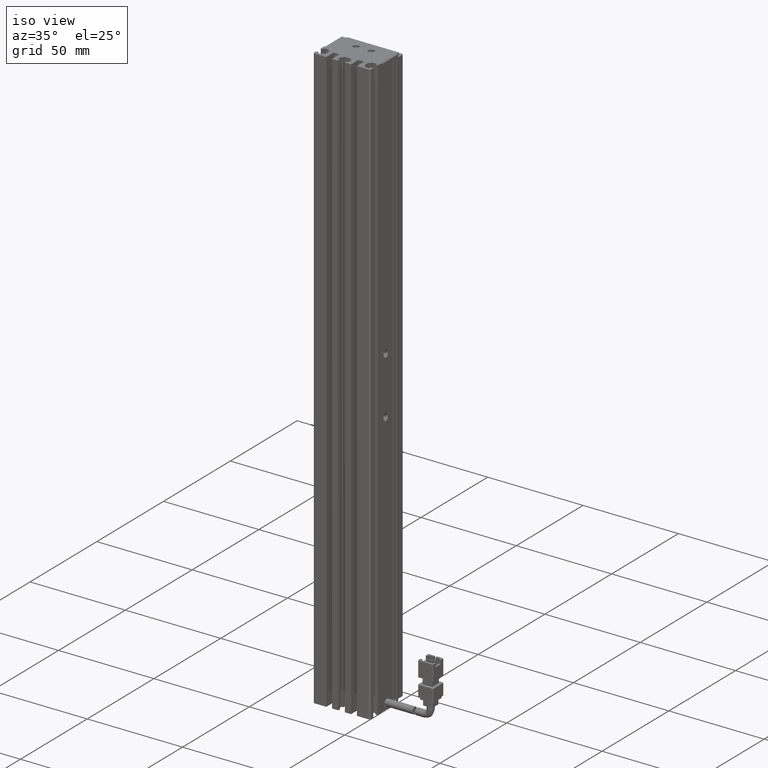
[diagram: clean part render]
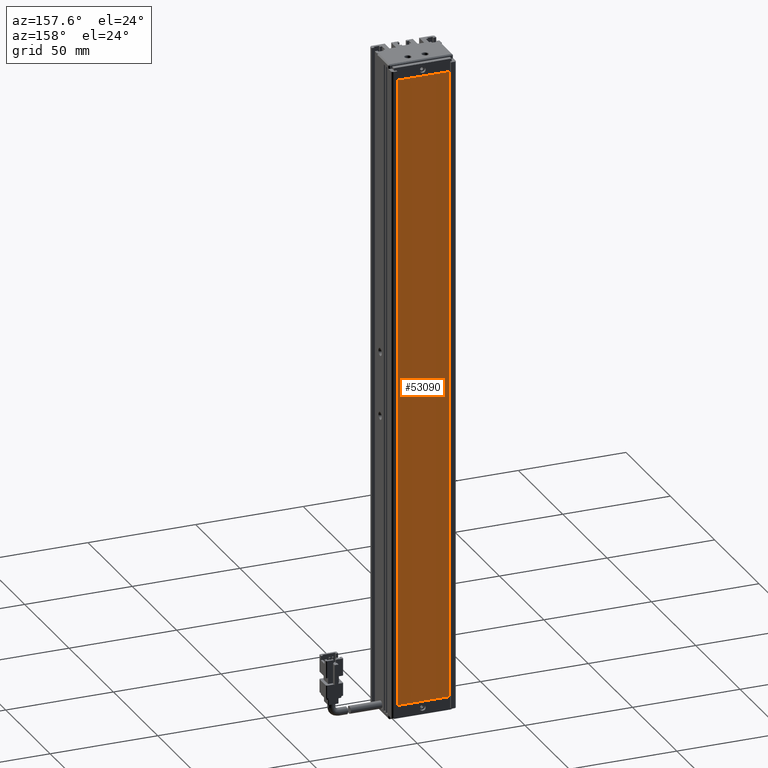
[diagram: tour spotlight — one face highlighted and labeled with its STEP entity id]
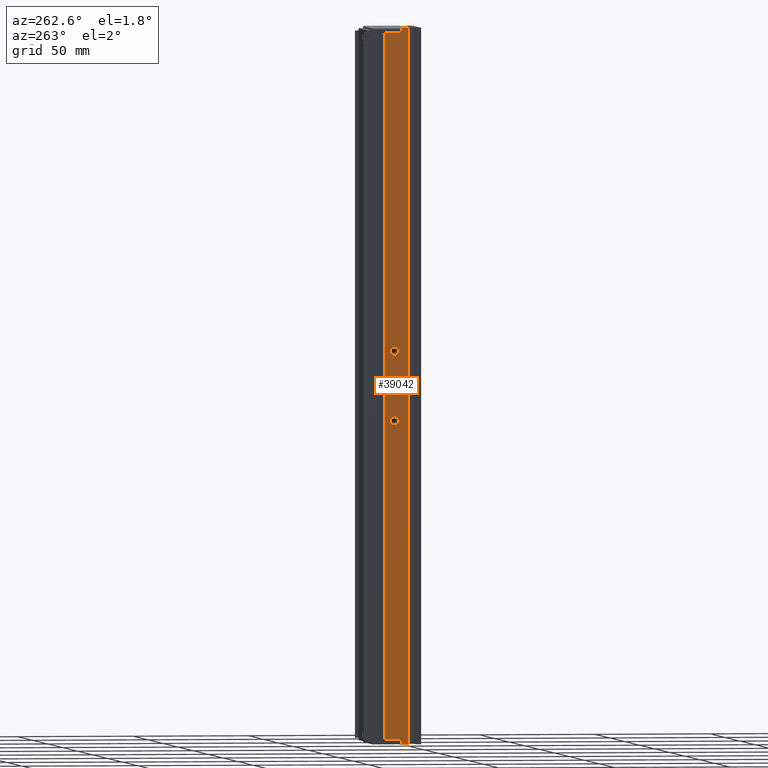
[diagram: tour spotlight — one face highlighted and labeled with its STEP entity id]
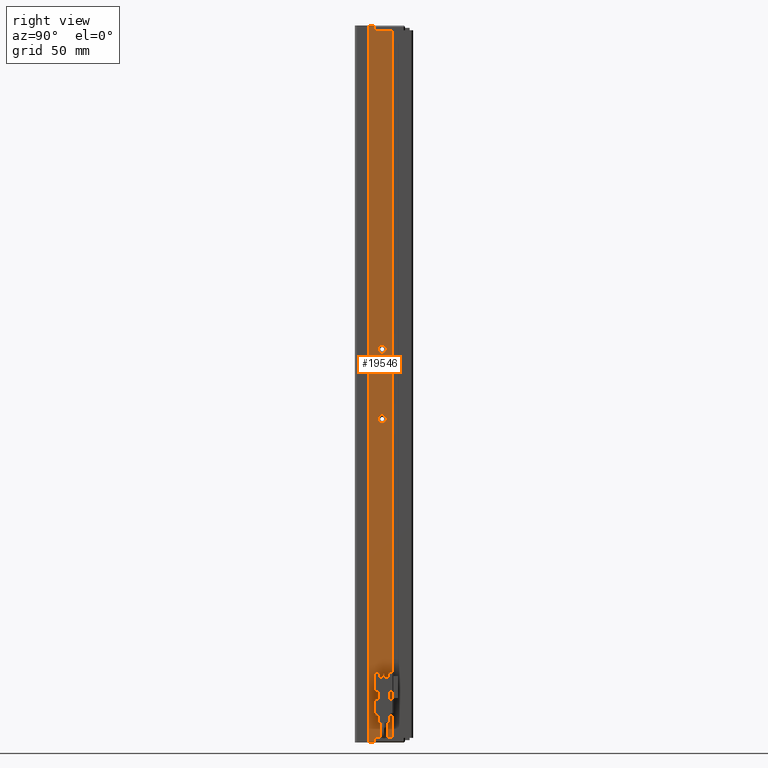
[diagram: tour spotlight — one face highlighted and labeled with its STEP entity id]
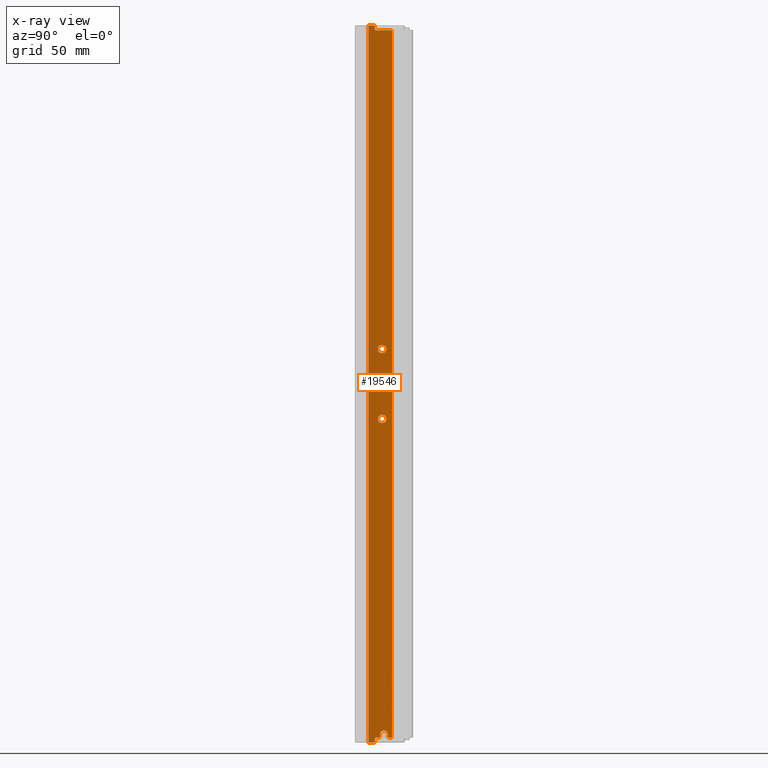
[diagram: x-ray of the same camera — body ghosted, this tour face saturated]
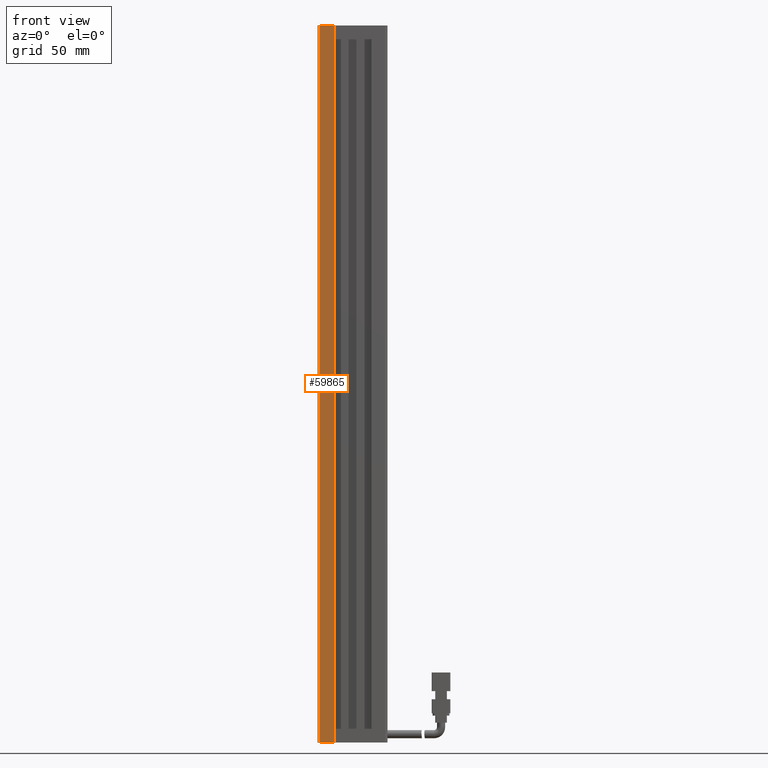
[diagram: tour spotlight — one face highlighted and labeled with its STEP entity id]
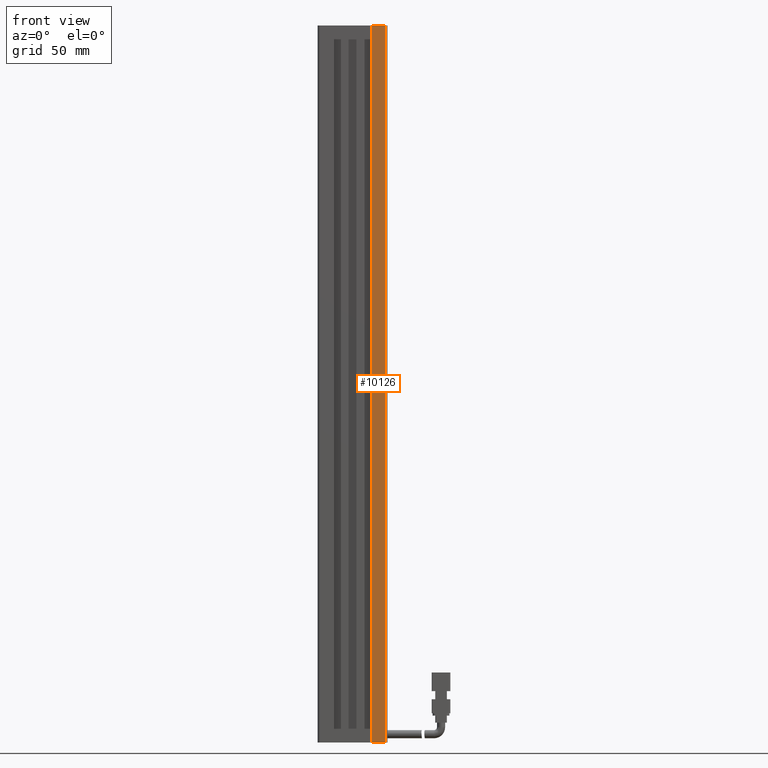
[diagram: tour spotlight — one face highlighted and labeled with its STEP entity id]
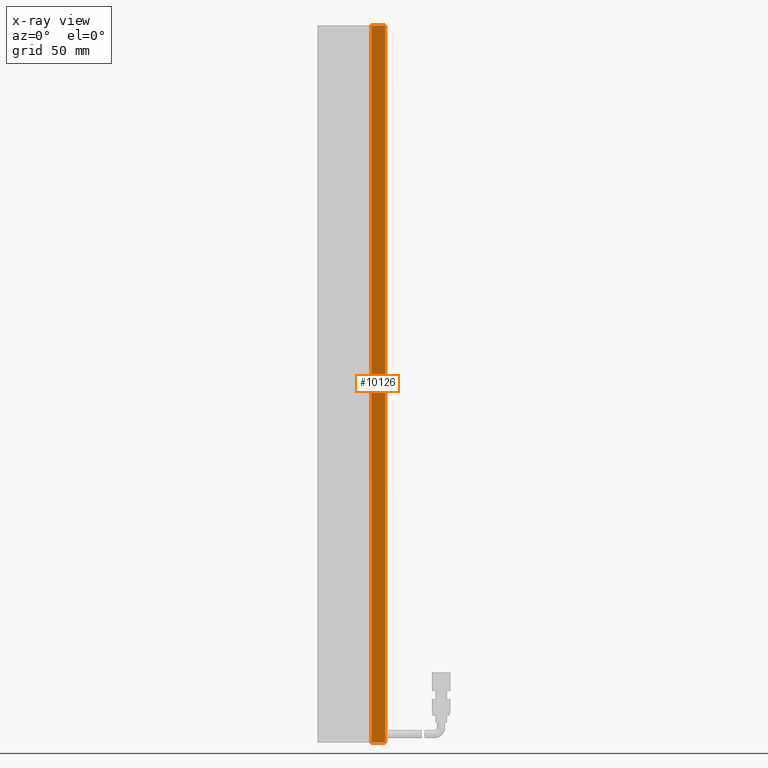
[diagram: x-ray of the same camera — body ghosted, this tour face saturated]
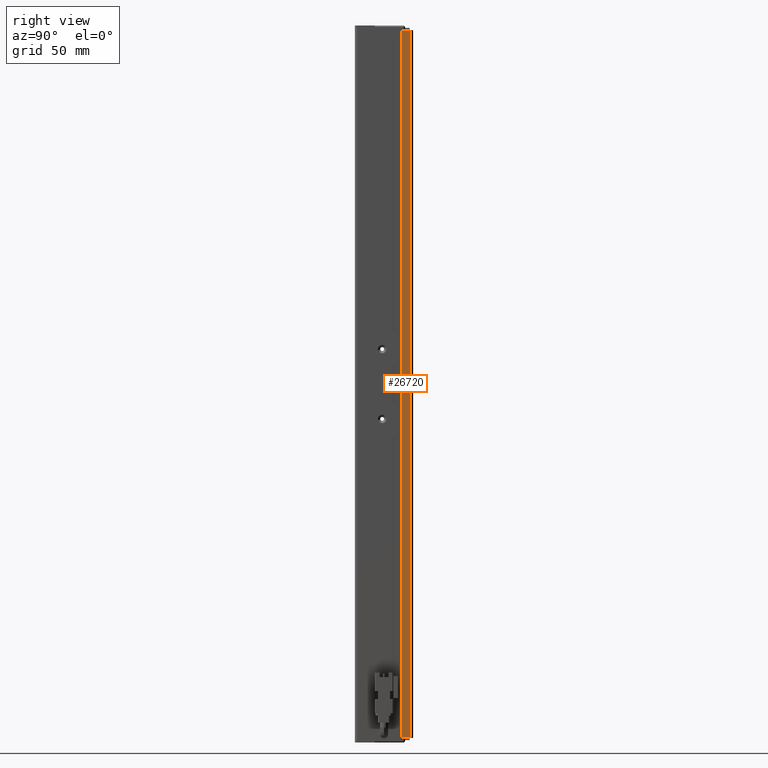
[diagram: tour spotlight — one face highlighted and labeled with its STEP entity id]
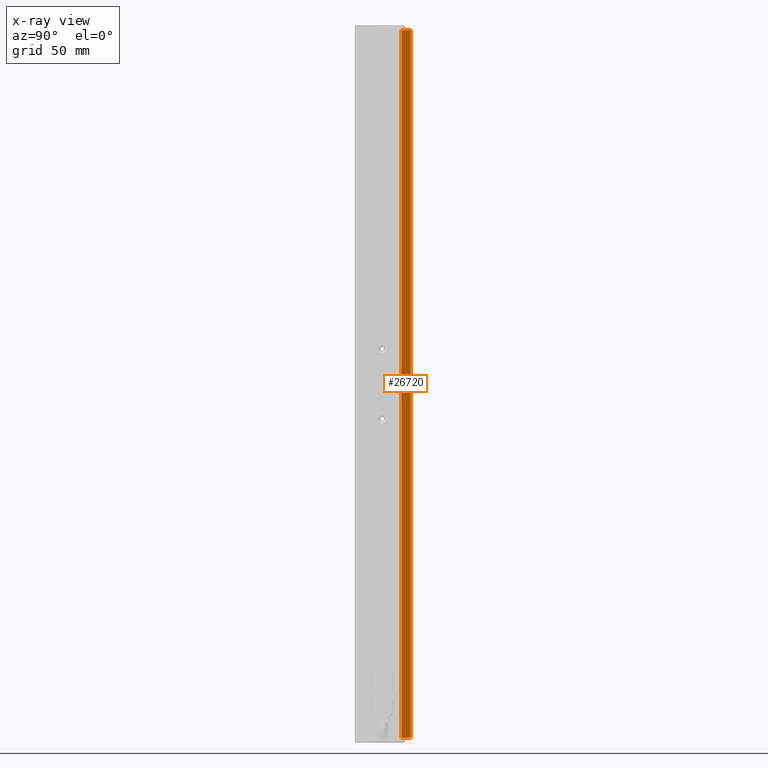
[diagram: x-ray of the same camera — body ghosted, this tour face saturated]
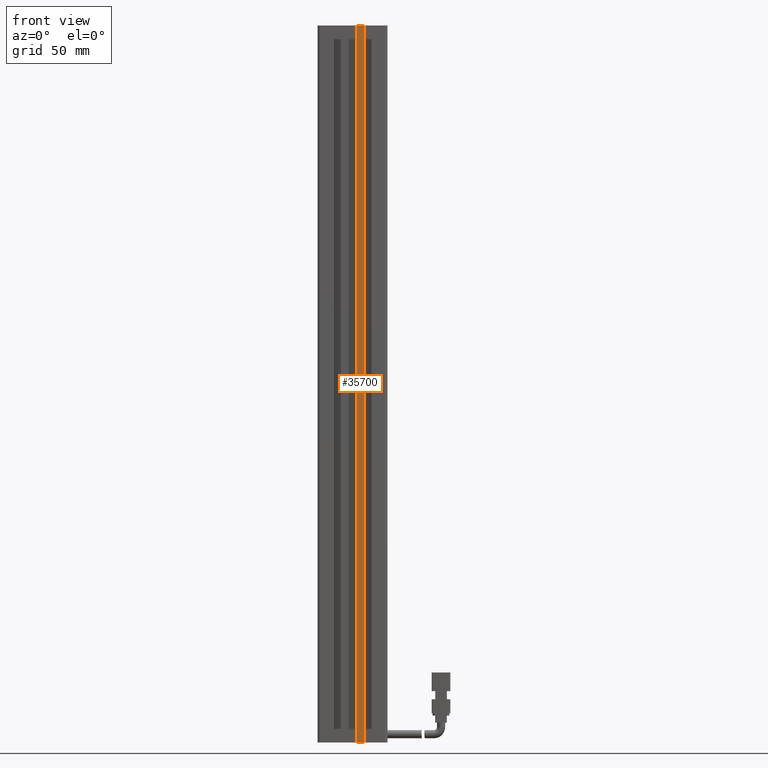
[diagram: tour spotlight — one face highlighted and labeled with its STEP entity id]
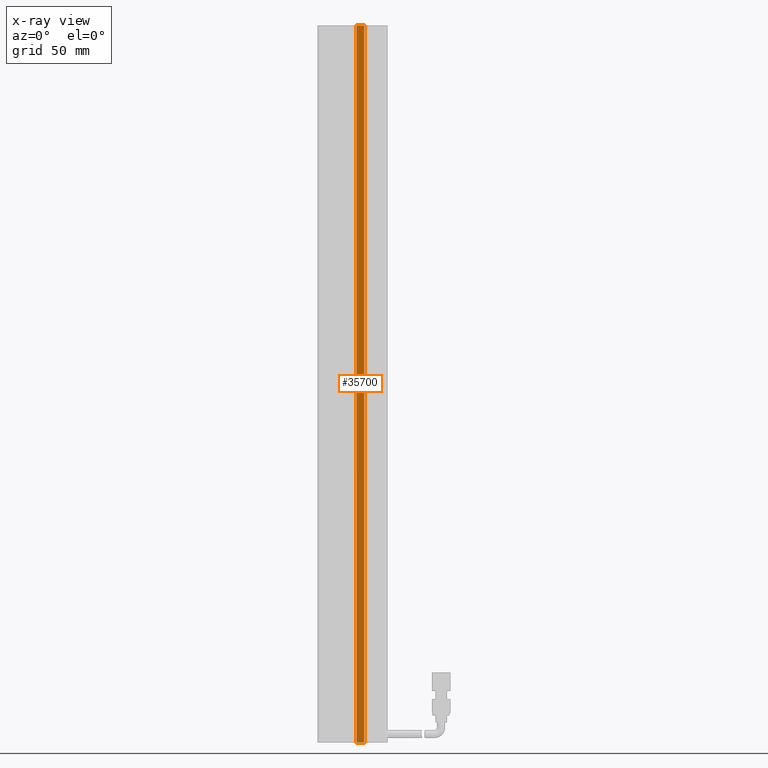
[diagram: x-ray of the same camera — body ghosted, this tour face saturated]
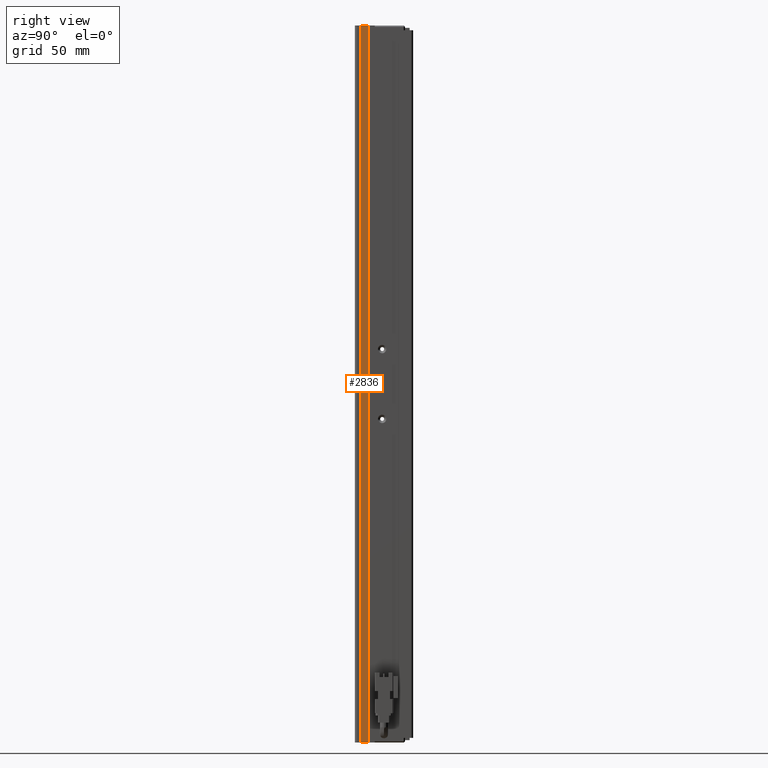
[diagram: tour spotlight — one face highlighted and labeled with its STEP entity id]
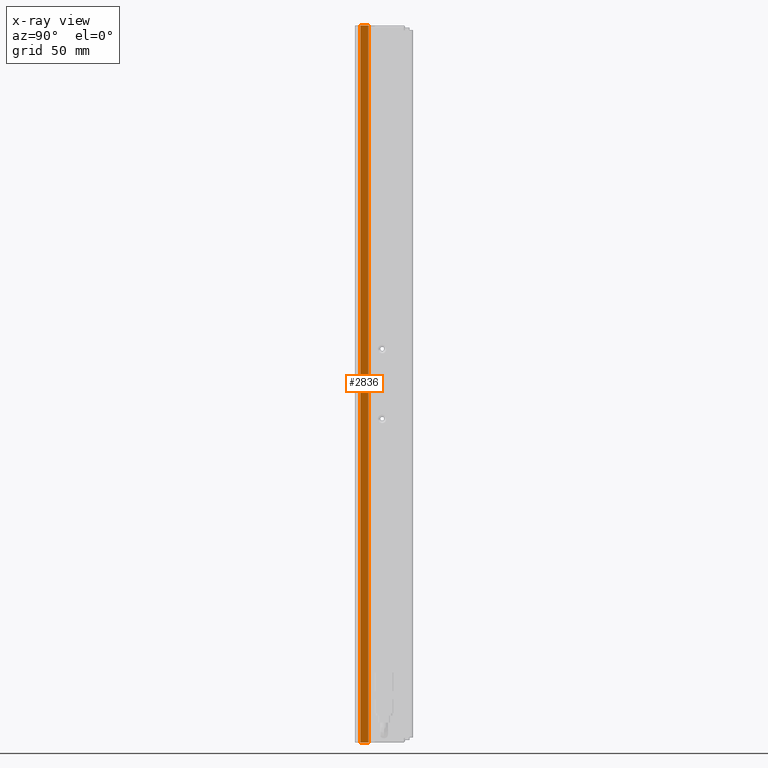
[diagram: x-ray of the same camera — body ghosted, this tour face saturated]
A machine part: a face-by-face anatomy tour. The part has 1424 B-rep faces; the first image is the clean iso view, then the 8 largest visible faces are spotlighted one at a time (largest first), each with its STEP entity span.

Face 1 — auxiliary view, entity #53090. In plain terms, the highlighted planar face has unit normal (0, 1, 0).
Definition (entity closure, byte-faithful):
#2023 = EDGE_CURVE ( 'NONE', #47777, #56560, #56406, .T. ) ;
#5522 = CARTESIAN_POINT ( 'NONE',  ( 53.32537974683541600, 34.29594479660387000, 32.14999999999995600 ) ) ;
#6251 = DIRECTION ( 'NONE',  ( 0.0000000000000000000, -0.0000000000000000000, 1.000000000000000000 ) ) ;
#9489 = CARTESIAN_POINT ( 'NONE',  ( 28.52537974683541600, 34.29594479660387000, -261.8500000000000200 ) ) ;
#10190 = VECTOR ( 'NONE', #53541, 1000.000000000000000 ) ;
#10264 = DIRECTION ( 'NONE',  ( 0.0000000000000000000, 0.0000000000000000000, -1.000000000000000000 ) ) ;
#15660 = CARTESIAN_POINT ( 'NONE',  ( 28.52537974683541600, 34.29594479660387000, -261.8500000000000200 ) ) ;
#17337 = CARTESIAN_POINT ( 'NONE',  ( 28.52537974683541600, 34.29594479660387000, 32.14999999999995600 ) ) ;
#17648 = VERTEX_POINT ( 'NONE', #9489 ) ;
#18667 = VECTOR ( 'NONE', #10264, 1000.000000000000000 ) ;
#19976 = CARTESIAN_POINT ( 'NONE',  ( 53.32537974683541600, 34.29594479660387000, 32.14999999999995600 ) ) ;
#20261 = EDGE_LOOP ( 'NONE', ( #43365, #34789, #60406, #34336 ) ) ;
#21117 = EDGE_CURVE ( 'NONE', #17648, #22897, #35424, .T. ) ;
#22897 = VERTEX_POINT ( 'NONE', #17337 ) ;
#24659 = CARTESIAN_POINT ( 'NONE',  ( 28.52537974683541600, 34.29594479660387000, 32.14999999999995600 ) ) ;
#25088 = PLANE ( 'NONE',  #43462 ) ;
#28678 = LINE ( 'NONE', #47518, #41233 ) ;
#29676 = CARTESIAN_POINT ( 'NONE',  ( 0.0000000000000000000, 34.29594479660387000, 0.0000000000000000000 ) ) ;
#34336 = ORIENTED_EDGE ( 'NONE', *, *, #46524, .T. ) ;
#34581 = DIRECTION ( 'NONE',  ( 0.0000000000000000000, 1.000000000000000000, 0.0000000000000000000 ) ) ;
#34789 = ORIENTED_EDGE ( 'NONE', *, *, #59086, .T. ) ;
#35424 = LINE ( 'NONE', #15660, #10190 ) ;
#41233 = VECTOR ( 'NONE', #42752, 1000.000000000000000 ) ;
#42752 = DIRECTION ( 'NONE',  ( -1.000000000000000000, 0.0000000000000000000, 0.0000000000000000000 ) ) ;
#43365 = ORIENTED_EDGE ( 'NONE', *, *, #2023, .T. ) ;
#43462 = AXIS2_PLACEMENT_3D ( 'NONE', #29676, #34581, #6251 ) ;
#43839 = LINE ( 'NONE', #24659, #56465 ) ;
#45994 = FACE_OUTER_BOUND ( 'NONE', #20261, .T. ) ;
#46524 = EDGE_CURVE ( 'NONE', #22897, #47777, #43839, .T. ) ;
#47518 = CARTESIAN_POINT ( 'NONE',  ( 53.32537974683541600, 34.29594479660387000, -261.8500000000000200 ) ) ;
#47777 = VERTEX_POINT ( 'NONE', #19976 ) ;
#53003 = DIRECTION ( 'NONE',  ( 1.000000000000000000, 0.0000000000000000000, 0.0000000000000000000 ) ) ;
#53090 = ADVANCED_FACE ( 'NONE', ( #45994 ), #25088, .T. ) ;
#53541 = DIRECTION ( 'NONE',  ( 0.0000000000000000000, 0.0000000000000000000, 1.000000000000000000 ) ) ;
#56406 = LINE ( 'NONE', #5522, #18667 ) ;
#56465 = VECTOR ( 'NONE', #53003, 1000.000000000000000 ) ;
#56560 = VERTEX_POINT ( 'NONE', #57395 ) ;
#57395 = CARTESIAN_POINT ( 'NONE',  ( 53.32537974683541600, 34.29594479660387000, -261.8500000000000200 ) ) ;
#59086 = EDGE_CURVE ( 'NONE', #56560, #17648, #28678, .T. ) ;
#60406 = ORIENTED_EDGE ( 'NONE', *, *, #21117, .T. ) ;

Face 2 — auxiliary view, entity #39042. In plain terms, the highlighted planar face has unit normal (-1, 0, 0).
Definition (entity closure, byte-faithful):
#202 = LINE ( 'NONE', #27766, #23974 ) ;
#620 = LINE ( 'NONE', #36113, #13292 ) ;
#1021 = CARTESIAN_POINT ( 'NONE',  ( 25.92537974683541800, 26.69594479660386800, -267.0000000000000000 ) ) ;
#1163 = DIRECTION ( 'NONE',  ( 0.0000000000000000000, 0.0000000000000000000, 1.000000000000000000 ) ) ;
#2296 = EDGE_CURVE ( 'NONE', #35625, #43048, #48146, .T. ) ;
#4934 = EDGE_LOOP ( 'NONE', ( #8576, #16420 ) ) ;
#5713 = EDGE_CURVE ( 'NONE', #51772, #58751, #19533, .T. ) ;
#6900 = CARTESIAN_POINT ( 'NONE',  ( 25.92537974683541800, 16.49594479660387200, -269.0000000000000000 ) ) ;
#6908 = VECTOR ( 'NONE', #46423, 1000.000000000000000 ) ;
#8331 = AXIS2_PLACEMENT_3D ( 'NONE', #25927, #59022, #30718 ) ;
#8576 = ORIENTED_EDGE ( 'NONE', *, *, #13587, .T. ) ;
#10807 = LINE ( 'NONE', #23277, #59775 ) ;
#10852 = AXIS2_PLACEMENT_3D ( 'NONE', #57911, #29629, #1163 ) ;
#11462 = AXIS2_PLACEMENT_3D ( 'NONE', #47451, #19137, #52227 ) ;
#12489 = DIRECTION ( 'NONE',  ( 0.0000000000000000000, 1.000000000000000000, -0.0000000000000000000 ) ) ;
#12842 = EDGE_CURVE ( 'NONE', #61376, #51772, #47055, .T. ) ;
#13209 = FACE_BOUND ( 'NONE', #17350, .T. ) ;
#13292 = VECTOR ( 'NONE', #12489, 1000.000000000000000 ) ;
#13587 = EDGE_CURVE ( 'NONE', #22311, #27178, #40571, .T. ) ;
#14364 = CARTESIAN_POINT ( 'NONE',  ( 25.92537974679222400, 22.39594479660386700, -131.8000000000734200 ) ) ;
#14448 = DIRECTION ( 'NONE',  ( -0.0000000000000000000, -1.000000000000000000, 0.0000000000000000000 ) ) ;
#15290 = EDGE_CURVE ( 'NONE', #26914, #47710, #40153, .T. ) ;
#16411 = ORIENTED_EDGE ( 'NONE', *, *, #15290, .T. ) ;
#16420 = ORIENTED_EDGE ( 'NONE', *, *, #16917, .T. ) ;
#16719 = ORIENTED_EDGE ( 'NONE', *, *, #12842, .T. ) ;
#16917 = EDGE_CURVE ( 'NONE', #27178, #22311, #55405, .T. ) ;
#16987 = CARTESIAN_POINT ( 'NONE',  ( 25.92537974684906700, 22.39594479660386700, -101.7999999999892700 ) ) ;
#17350 = EDGE_LOOP ( 'NONE', ( #16411, #28260 ) ) ;
#18100 = CARTESIAN_POINT ( 'NONE',  ( 25.92537974683542100, 19.19594479660386500, 38.99999999999999300 ) ) ;
#18326 = DIRECTION ( 'NONE',  ( 1.000000000000000000, -0.0000000000000000000, -0.0000000000000000000 ) ) ;
#18821 = DIRECTION ( 'NONE',  ( 0.0000000000000000000, 0.0000000000000000000, 1.000000000000000000 ) ) ;
#18872 = VERTEX_POINT ( 'NONE', #23625 ) ;
#19137 = DIRECTION ( 'NONE',  ( 1.000000000000000000, -0.0000000000000000000, -0.0000000000000000000 ) ) ;
#19533 = LINE ( 'NONE', #18100, #6908 ) ;
#19876 = FACE_BOUND ( 'NONE', #4934, .T. ) ;
#21896 = VERTEX_POINT ( 'NONE', #51559 ) ;
#22309 = VECTOR ( 'NONE', #26609, 1000.000000000000000 ) ;
#22311 = VERTEX_POINT ( 'NONE', #31915 ) ;
#22992 = VECTOR ( 'NONE', #18821, 1000.000000000000000 ) ;
#23277 = CARTESIAN_POINT ( 'NONE',  ( 25.92537974683541800, 26.69594479660386800, 38.99999999999999300 ) ) ;
#23535 = CARTESIAN_POINT ( 'NONE',  ( 25.92537974683541800, 16.49594479660387200, 38.99999999999999300 ) ) ;
#23625 = CARTESIAN_POINT ( 'NONE',  ( 25.92537974683541800, 26.69594479660386800, 36.99999999999999300 ) ) ;
#23974 = VECTOR ( 'NONE', #56055, 1000.000000000000000 ) ;
#24054 = ORIENTED_EDGE ( 'NONE', *, *, #2296, .T. ) ;
#25545 = LINE ( 'NONE', #46488, #46248 ) ;
#25927 = CARTESIAN_POINT ( 'NONE',  ( 25.92537974683541800, 7.083797468354437600, 38.99999999999999300 ) ) ;
#26067 = ORIENTED_EDGE ( 'NONE', *, *, #41911, .T. ) ;
#26609 = DIRECTION ( 'NONE',  ( 0.0000000000000000000, 1.000000000000000000, 0.0000000000000000000 ) ) ;
#26914 = VERTEX_POINT ( 'NONE', #33740 ) ;
#27023 = DIRECTION ( 'NONE',  ( 1.000000000000000000, -0.0000000000000000000, -0.0000000000000000000 ) ) ;
#27178 = VERTEX_POINT ( 'NONE', #16987 ) ;
#27766 = CARTESIAN_POINT ( 'NONE',  ( 25.92537974683541800, 19.19594479660386500, 38.99999999999999300 ) ) ;
#28054 = DIRECTION ( 'NONE',  ( -0.0000000000000000000, -0.0000000000000000000, -1.000000000000000000 ) ) ;
#28260 = ORIENTED_EDGE ( 'NONE', *, *, #59632, .T. ) ;
#29629 = DIRECTION ( 'NONE',  ( 1.000000000000000000, -0.0000000000000000000, -0.0000000000000000000 ) ) ;
#30718 = DIRECTION ( 'NONE',  ( 0.0000000000000000000, 0.0000000000000000000, 1.000000000000000000 ) ) ;
#31915 = CARTESIAN_POINT ( 'NONE',  ( 25.92537974684906700, 22.39594479660386700, -98.20000000001073200 ) ) ;
#33740 = CARTESIAN_POINT ( 'NONE',  ( 25.92537974679222400, 22.39594479660386700, -128.1999999999266000 ) ) ;
#34225 = EDGE_CURVE ( 'NONE', #18872, #61376, #10807, .T. ) ;
#34458 = VECTOR ( 'NONE', #14448, 1000.000000000000000 ) ;
#34863 = LINE ( 'NONE', #50192, #22309 ) ;
#34945 = CARTESIAN_POINT ( 'NONE',  ( 25.92537974683541800, 19.19594479660386500, -269.0000000000000000 ) ) ;
#35114 = CIRCLE ( 'NONE', #11462, 1.800000000073409500 ) ;
#35625 = VERTEX_POINT ( 'NONE', #6900 ) ;
#36113 = CARTESIAN_POINT ( 'NONE',  ( 25.92537974683541800, 7.083797468354437600, 38.99999999999999300 ) ) ;
#38582 = AXIS2_PLACEMENT_3D ( 'NONE', #46648, #18326, #51428 ) ;
#39042 = ADVANCED_FACE ( 'NONE', ( #57590, #19876, #13209 ), #39974, .T. ) ;
#39974 = PLANE ( 'NONE',  #8331 ) ;
#40153 = CIRCLE ( 'NONE', #42365, 1.800000000073409500 ) ;
#40571 = CIRCLE ( 'NONE', #10852, 1.799999999989268400 ) ;
#40849 = EDGE_CURVE ( 'NONE', #21896, #56078, #202, .T. ) ;
#41814 = CARTESIAN_POINT ( 'NONE',  ( 25.92537974683541800, 16.49594479660387200, 38.99999999999999300 ) ) ;
#41911 = EDGE_CURVE ( 'NONE', #43048, #21896, #620, .T. ) ;
#42365 = AXIS2_PLACEMENT_3D ( 'NONE', #55330, #27023, #60119 ) ;
#43048 = VERTEX_POINT ( 'NONE', #41814 ) ;
#43637 = EDGE_CURVE ( 'NONE', #58751, #35625, #25545, .T. ) ;
#43664 = ORIENTED_EDGE ( 'NONE', *, *, #55606, .T. ) ;
#46248 = VECTOR ( 'NONE', #51294, 1000.000000000000000 ) ;
#46423 = DIRECTION ( 'NONE',  ( 0.0000000000000000000, -0.0000000000000000000, -1.000000000000000000 ) ) ;
#46488 = CARTESIAN_POINT ( 'NONE',  ( 25.92537974683541800, 7.083797468354437600, -269.0000000000000000 ) ) ;
#46648 = CARTESIAN_POINT ( 'NONE',  ( 25.92537974684906700, 22.39594479660386700, -100.0000000000000000 ) ) ;
#46955 = CARTESIAN_POINT ( 'NONE',  ( 25.92537974683541800, 19.19594479660386500, -267.0000000000000000 ) ) ;
#47055 = LINE ( 'NONE', #47557, #34458 ) ;
#47451 = CARTESIAN_POINT ( 'NONE',  ( 25.92537974679222400, 22.39594479660386700, -130.0000000000000000 ) ) ;
#47557 = CARTESIAN_POINT ( 'NONE',  ( 25.92537974683541800, 7.083797468354437600, -267.0000000000000000 ) ) ;
#47710 = VERTEX_POINT ( 'NONE', #14364 ) ;
#47921 = CARTESIAN_POINT ( 'NONE',  ( 25.92537974683541800, 19.19594479660386500, 36.99999999999999300 ) ) ;
#48146 = LINE ( 'NONE', #23535, #22992 ) ;
#50192 = CARTESIAN_POINT ( 'NONE',  ( 25.92537974683542100, 35.69594479660387500, 36.99999999999999300 ) ) ;
#50989 = ORIENTED_EDGE ( 'NONE', *, *, #34225, .T. ) ;
#51294 = DIRECTION ( 'NONE',  ( -0.0000000000000000000, -1.000000000000000000, 0.0000000000000000000 ) ) ;
#51428 = DIRECTION ( 'NONE',  ( 0.0000000000000000000, 0.0000000000000000000, 1.000000000000000000 ) ) ;
#51559 = CARTESIAN_POINT ( 'NONE',  ( 25.92537974683541800, 19.19594479660386500, 38.99999999999999300 ) ) ;
#51772 = VERTEX_POINT ( 'NONE', #46955 ) ;
#52227 = DIRECTION ( 'NONE',  ( 0.0000000000000000000, 0.0000000000000000000, 1.000000000000000000 ) ) ;
#53391 = ORIENTED_EDGE ( 'NONE', *, *, #5713, .T. ) ;
#54843 = EDGE_LOOP ( 'NONE', ( #26067, #59918, #43664, #50989, #16719, #53391, #56344, #24054 ) ) ;
#55330 = CARTESIAN_POINT ( 'NONE',  ( 25.92537974679222400, 22.39594479660386700, -130.0000000000000000 ) ) ;
#55405 = CIRCLE ( 'NONE', #38582, 1.799999999989268400 ) ;
#55606 = EDGE_CURVE ( 'NONE', #56078, #18872, #34863, .T. ) ;
#56055 = DIRECTION ( 'NONE',  ( 0.0000000000000000000, -0.0000000000000000000, -1.000000000000000000 ) ) ;
#56078 = VERTEX_POINT ( 'NONE', #47921 ) ;
#56344 = ORIENTED_EDGE ( 'NONE', *, *, #43637, .T. ) ;
#57590 = FACE_OUTER_BOUND ( 'NONE', #54843, .T. ) ;
#57911 = CARTESIAN_POINT ( 'NONE',  ( 25.92537974684906700, 22.39594479660386700, -100.0000000000000000 ) ) ;
#58751 = VERTEX_POINT ( 'NONE', #34945 ) ;
#59022 = DIRECTION ( 'NONE',  ( -1.000000000000000000, 0.0000000000000000000, 0.0000000000000000000 ) ) ;
#59632 = EDGE_CURVE ( 'NONE', #47710, #26914, #35114, .T. ) ;
#59775 = VECTOR ( 'NONE', #28054, 1000.000000000000000 ) ;
#59918 = ORIENTED_EDGE ( 'NONE', *, *, #40849, .T. ) ;
#60119 = DIRECTION ( 'NONE',  ( 0.0000000000000000000, 0.0000000000000000000, 1.000000000000000000 ) ) ;
#61376 = VERTEX_POINT ( 'NONE', #1021 ) ;

Face 3 — right view, entity #19546. An x-ray twin of the same camera follows (body ghosted, this face saturated) — the face is partly hidden behind the body. In plain terms, the highlighted planar face has unit normal (-1, 0, 0).
Definition (entity closure, byte-faithful):
#4 = DIRECTION ( 'NONE',  ( 1.000000000000000000, 0.0000000000000000000, 0.0000000000000000000 ) ) ;
#824 = VECTOR ( 'NONE', #6865, 1000.000000000000000 ) ;
#1102 = CARTESIAN_POINT ( 'NONE',  ( 55.92537974683543200, 19.19594479660386500, 38.99999999999999300 ) ) ;
#1611 = VERTEX_POINT ( 'NONE', #27657 ) ;
#1748 = ORIENTED_EDGE ( 'NONE', *, *, #32646, .F. ) ;
#2093 = CARTESIAN_POINT ( 'NONE',  ( 55.92537974687862600, 22.39594479660386700, -98.19999999992660400 ) ) ;
#2470 = LINE ( 'NONE', #3567, #24718 ) ;
#3405 = ORIENTED_EDGE ( 'NONE', *, *, #32893, .F. ) ;
#3567 = CARTESIAN_POINT ( 'NONE',  ( 55.92537974683541100, 7.083797468354417100, -267.0000000000000000 ) ) ;
#3902 = CIRCLE ( 'NONE', #18705, 1.799999999989254600 ) ;
#5192 = VECTOR ( 'NONE', #46718, 1000.000000000000000 ) ;
#5761 = CARTESIAN_POINT ( 'NONE',  ( 55.92537974683541100, 7.083797468354417100, -269.0000000000000000 ) ) ;
#6281 = VECTOR ( 'NONE', #15431, 1000.000000000000000 ) ;
#6551 = VECTOR ( 'NONE', #24595, 1000.000000000000000 ) ;
#6865 = DIRECTION ( 'NONE',  ( 0.0000000000000000000, 1.000000000000000000, -0.0000000000000000000 ) ) ;
#6981 = ORIENTED_EDGE ( 'NONE', *, *, #44301, .F. ) ;
#7618 = EDGE_CURVE ( 'NONE', #28247, #44421, #19009, .T. ) ;
#7845 = AXIS2_PLACEMENT_3D ( 'NONE', #44647, #16296, #49428 ) ;
#8834 = CARTESIAN_POINT ( 'NONE',  ( 55.92537974683539700, 24.84594479660386700, -267.0000000000000000 ) ) ;
#10058 = CARTESIAN_POINT ( 'NONE',  ( 55.92537974683539700, 23.19594479660386500, -265.4500000000000500 ) ) ;
#10238 = EDGE_CURVE ( 'NONE', #36438, #13819, #35028, .T. ) ;
#10645 = CARTESIAN_POINT ( 'NONE',  ( 55.92537974687862600, 22.39594479660386700, -100.0000000000000000 ) ) ;
#10685 = AXIS2_PLACEMENT_3D ( 'NONE', #24327, #57418, #29101 ) ;
#12935 = EDGE_CURVE ( 'NONE', #13133, #13897, #33018, .T. ) ;
#13133 = VERTEX_POINT ( 'NONE', #60673 ) ;
#13229 = LINE ( 'NONE', #52941, #6551 ) ;
#13419 = VERTEX_POINT ( 'NONE', #38126 ) ;
#13819 = VERTEX_POINT ( 'NONE', #59825 ) ;
#13897 = VERTEX_POINT ( 'NONE', #46113 ) ;
#14233 = LINE ( 'NONE', #31549, #39408 ) ;
#14570 = EDGE_CURVE ( 'NONE', #36438, #49918, #31529, .T. ) ;
#14855 = DIRECTION ( 'NONE',  ( 0.0000000000000000000, 1.000000000000000000, 0.0000000000000000000 ) ) ;
#15419 = DIRECTION ( 'NONE',  ( 0.0000000000000000000, 0.0000000000000000000, -1.000000000000000000 ) ) ;
#15431 = DIRECTION ( 'NONE',  ( -0.0000000000000000000, 0.0000000000000000000, 1.000000000000000000 ) ) ;
#15594 = AXIS2_PLACEMENT_3D ( 'NONE', #10058, #43196, #14855 ) ;
#16111 = VERTEX_POINT ( 'NONE', #34327 ) ;
#16296 = DIRECTION ( 'NONE',  ( -1.000000000000000000, 1.394554826879015900E-015, 0.0000000000000000000 ) ) ;
#16351 = ORIENTED_EDGE ( 'NONE', *, *, #44200, .F. ) ;
#16389 = EDGE_CURVE ( 'NONE', #13133, #25463, #19331, .T. ) ;
#16629 = EDGE_CURVE ( 'NONE', #31436, #46096, #42911, .T. ) ;
#16779 = ORIENTED_EDGE ( 'NONE', *, *, #42655, .T. ) ;
#16993 = CARTESIAN_POINT ( 'NONE',  ( 55.92537974687862600, 22.39594479660386700, -101.8000000000734000 ) ) ;
#17318 = FACE_OUTER_BOUND ( 'NONE', #33904, .T. ) ;
#17612 = ORIENTED_EDGE ( 'NONE', *, *, #23875, .F. ) ;
#18679 = LINE ( 'NONE', #35204, #824 ) ;
#18705 = AXIS2_PLACEMENT_3D ( 'NONE', #28449, #61592, #33173 ) ;
#19009 = LINE ( 'NONE', #31896, #53763 ) ;
#19331 = LINE ( 'NONE', #8834, #5192 ) ;
#19546 = ADVANCED_FACE ( 'NONE', ( #29914, #17318, #53568 ), #20889, .F. ) ;
#20094 = DIRECTION ( 'NONE',  ( -1.394554826879015900E-015, -1.000000000000000000, 0.0000000000000000000 ) ) ;
#20889 = PLANE ( 'NONE',  #7845 ) ;
#20965 = ORIENTED_EDGE ( 'NONE', *, *, #14570, .T. ) ;
#21268 = ORIENTED_EDGE ( 'NONE', *, *, #34321, .F. ) ;
#22465 = VECTOR ( 'NONE', #20094, 1000.000000000000000 ) ;
#22572 = EDGE_CURVE ( 'NONE', #28247, #1611, #13229, .T. ) ;
#23875 = EDGE_CURVE ( 'NONE', #46096, #31436, #30667, .T. ) ;
#24327 = CARTESIAN_POINT ( 'NONE',  ( 55.92537974687862600, 22.39594479660386700, -100.0000000000000000 ) ) ;
#24595 = DIRECTION ( 'NONE',  ( 1.394554826879015900E-015, 1.000000000000000000, -0.0000000000000000000 ) ) ;
#24681 = CARTESIAN_POINT ( 'NONE',  ( 55.92537974683543200, 19.19594479660386500, 38.99999999999999300 ) ) ;
#24718 = VECTOR ( 'NONE', #41466, 1000.000000000000000 ) ;
#25233 = CARTESIAN_POINT ( 'NONE',  ( 55.92537974683542500, 21.54594479660386200, -267.0000000000000000 ) ) ;
#25463 = VERTEX_POINT ( 'NONE', #60829 ) ;
#26516 = CARTESIAN_POINT ( 'NONE',  ( 55.92537974683543200, 19.19594479660386500, -267.0000000000000000 ) ) ;
#27657 = CARTESIAN_POINT ( 'NONE',  ( 55.92537974683543900, 26.69594479660386800, 36.99999999999999300 ) ) ;
#28247 = VERTEX_POINT ( 'NONE', #44794 ) ;
#28449 = CARTESIAN_POINT ( 'NONE',  ( 55.92537974682178300, 22.39594479660386700, -130.0000000000000000 ) ) ;
#28453 = ORIENTED_EDGE ( 'NONE', *, *, #16629, .F. ) ;
#28454 = CARTESIAN_POINT ( 'NONE',  ( 55.92537974682178300, 22.39594479660386700, -130.0000000000000000 ) ) ;
#28715 = ORIENTED_EDGE ( 'NONE', *, *, #7618, .T. ) ;
#29101 = DIRECTION ( 'NONE',  ( 0.0000000000000000000, 0.0000000000000000000, -1.000000000000000000 ) ) ;
#29265 = DIRECTION ( 'NONE',  ( 0.0000000000000000000, 0.0000000000000000000, 1.000000000000000000 ) ) ;
#29519 = VECTOR ( 'NONE', #38964, 1000.000000000000000 ) ;
#29566 = CARTESIAN_POINT ( 'NONE',  ( 55.92537974683543200, 26.69594479660386800, -267.0000000000000000 ) ) ;
#29696 = DIRECTION ( 'NONE',  ( -0.0000000000000000000, -0.0000000000000000000, -1.000000000000000000 ) ) ;
#29914 = FACE_BOUND ( 'NONE', #52096, .T. ) ;
#30667 = CIRCLE ( 'NONE', #10685, 1.800000000073395800 ) ;
#31436 = VERTEX_POINT ( 'NONE', #16993 ) ;
#31529 = LINE ( 'NONE', #1102, #6281 ) ;
#31549 = CARTESIAN_POINT ( 'NONE',  ( 55.92537974683541100, 7.083797468354417100, -267.0000000000000000 ) ) ;
#31896 = CARTESIAN_POINT ( 'NONE',  ( 55.92537974683543200, 19.19594479660386500, 38.99999999999999300 ) ) ;
#32481 = VECTOR ( 'NONE', #29265, 1000.000000000000000 ) ;
#32646 = EDGE_CURVE ( 'NONE', #1611, #54889, #35830, .T. ) ;
#32893 = EDGE_CURVE ( 'NONE', #43314, #49918, #14233, .T. ) ;
#33018 = CIRCLE ( 'NONE', #15594, 1.650000000000002100 ) ;
#33065 = CARTESIAN_POINT ( 'NONE',  ( 55.92537974683543200, 19.19594479660386500, -269.0000000000000000 ) ) ;
#33173 = DIRECTION ( 'NONE',  ( 0.0000000000000000000, 0.0000000000000000000, -1.000000000000000000 ) ) ;
#33183 = DIRECTION ( 'NONE',  ( 0.0000000000000000000, 0.0000000000000000000, -1.000000000000000000 ) ) ;
#33904 = EDGE_LOOP ( 'NONE', ( #16779, #60991, #36083, #16351, #1748, #49899, #28715, #51012, #36277, #57323, #20965, #3405 ) ) ;
#34321 = EDGE_CURVE ( 'NONE', #46558, #16111, #45660, .T. ) ;
#34327 = CARTESIAN_POINT ( 'NONE',  ( 55.92537974682178300, 22.39594479660386700, -128.2000000000107600 ) ) ;
#35028 = LINE ( 'NONE', #5761, #22465 ) ;
#35204 = CARTESIAN_POINT ( 'NONE',  ( 55.92537974683542500, 7.083797468354437600, 38.99999999999999300 ) ) ;
#35830 = LINE ( 'NONE', #38971, #56521 ) ;
#36083 = ORIENTED_EDGE ( 'NONE', *, *, #16389, .T. ) ;
#36277 = ORIENTED_EDGE ( 'NONE', *, *, #42589, .F. ) ;
#36438 = VERTEX_POINT ( 'NONE', #33065 ) ;
#36643 = DIRECTION ( 'NONE',  ( -0.0000000000000000000, 0.0000000000000000000, 1.000000000000000000 ) ) ;
#38126 = CARTESIAN_POINT ( 'NONE',  ( 55.92537974683542500, 16.49594479660387200, 38.99999999999999300 ) ) ;
#38964 = DIRECTION ( 'NONE',  ( -0.0000000000000000000, 0.0000000000000000000, 1.000000000000000000 ) ) ;
#38971 = CARTESIAN_POINT ( 'NONE',  ( 55.92537974683543900, 26.69594479660386800, 38.99999999999999300 ) ) ;
#39408 = VECTOR ( 'NONE', #59478, 1000.000000000000000 ) ;
#41466 = DIRECTION ( 'NONE',  ( -1.394554826879015900E-015, -1.000000000000000000, 0.0000000000000000000 ) ) ;
#42076 = LINE ( 'NONE', #52632, #29519 ) ;
#42544 = AXIS2_PLACEMENT_3D ( 'NONE', #28454, #4, #33183 ) ;
#42589 = EDGE_CURVE ( 'NONE', #13819, #13419, #45056, .T. ) ;
#42655 = EDGE_CURVE ( 'NONE', #43314, #13897, #42076, .T. ) ;
#42911 = CIRCLE ( 'NONE', #45282, 1.800000000073395800 ) ;
#43196 = DIRECTION ( 'NONE',  ( 1.000000000000000000, 5.687617954022316600E-016, -0.0000000000000000000 ) ) ;
#43314 = VERTEX_POINT ( 'NONE', #25233 ) ;
#43765 = DIRECTION ( 'NONE',  ( 1.000000000000000000, 0.0000000000000000000, 0.0000000000000000000 ) ) ;
#44200 = EDGE_CURVE ( 'NONE', #54889, #25463, #2470, .T. ) ;
#44301 = EDGE_CURVE ( 'NONE', #16111, #46558, #3902, .T. ) ;
#44421 = VERTEX_POINT ( 'NONE', #24681 ) ;
#44571 = EDGE_CURVE ( 'NONE', #13419, #44421, #18679, .T. ) ;
#44647 = CARTESIAN_POINT ( 'NONE',  ( 55.92537974683541100, 7.083797468354417100, 38.99999999999999300 ) ) ;
#44794 = CARTESIAN_POINT ( 'NONE',  ( 55.92537974683543200, 19.19594479660386500, 36.99999999999999300 ) ) ;
#45056 = LINE ( 'NONE', #52850, #32481 ) ;
#45282 = AXIS2_PLACEMENT_3D ( 'NONE', #10645, #43765, #15419 ) ;
#45660 = CIRCLE ( 'NONE', #42544, 1.799999999989254600 ) ;
#46096 = VERTEX_POINT ( 'NONE', #2093 ) ;
#46113 = CARTESIAN_POINT ( 'NONE',  ( 55.92537974683539700, 21.54594479660386200, -265.4500000000000500 ) ) ;
#46558 = VERTEX_POINT ( 'NONE', #48451 ) ;
#46718 = DIRECTION ( 'NONE',  ( -0.0000000000000000000, -0.0000000000000000000, -1.000000000000000000 ) ) ;
#48451 = CARTESIAN_POINT ( 'NONE',  ( 55.92537974682178300, 22.39594479660386700, -131.7999999999892700 ) ) ;
#49428 = DIRECTION ( 'NONE',  ( -1.394554826879015900E-015, -1.000000000000000000, 0.0000000000000000000 ) ) ;
#49899 = ORIENTED_EDGE ( 'NONE', *, *, #22572, .F. ) ;
#49918 = VERTEX_POINT ( 'NONE', #26516 ) ;
#51012 = ORIENTED_EDGE ( 'NONE', *, *, #44571, .F. ) ;
#52096 = EDGE_LOOP ( 'NONE', ( #21268, #6981 ) ) ;
#52632 = CARTESIAN_POINT ( 'NONE',  ( 55.92537974683540400, 21.54594479660386200, -267.0000000000000000 ) ) ;
#52850 = CARTESIAN_POINT ( 'NONE',  ( 55.92537974683542500, 16.49594479660387200, 38.99999999999999300 ) ) ;
#52941 = CARTESIAN_POINT ( 'NONE',  ( 55.92537974683541100, 7.083797468354417100, 36.99999999999999300 ) ) ;
#53568 = FACE_BOUND ( 'NONE', #54042, .T. ) ;
#53763 = VECTOR ( 'NONE', #36643, 1000.000000000000000 ) ;
#54042 = EDGE_LOOP ( 'NONE', ( #28453, #17612 ) ) ;
#54889 = VERTEX_POINT ( 'NONE', #29566 ) ;
#56521 = VECTOR ( 'NONE', #29696, 1000.000000000000000 ) ;
#57323 = ORIENTED_EDGE ( 'NONE', *, *, #10238, .F. ) ;
#57418 = DIRECTION ( 'NONE',  ( 1.000000000000000000, 0.0000000000000000000, 0.0000000000000000000 ) ) ;
#59478 = DIRECTION ( 'NONE',  ( -1.394554826879015900E-015, -1.000000000000000000, 0.0000000000000000000 ) ) ;
#59825 = CARTESIAN_POINT ( 'NONE',  ( 55.92537974683542500, 16.49594479660387200, -269.0000000000000000 ) ) ;
#60673 = CARTESIAN_POINT ( 'NONE',  ( 55.92537974683539700, 24.84594479660386700, -265.4500000000000500 ) ) ;
#60829 = CARTESIAN_POINT ( 'NONE',  ( 55.92537974683541100, 24.84594479660386700, -267.0000000000000000 ) ) ;
#60991 = ORIENTED_EDGE ( 'NONE', *, *, #12935, .F. ) ;
#61592 = DIRECTION ( 'NONE',  ( 1.000000000000000000, 0.0000000000000000000, 0.0000000000000000000 ) ) ;

Face 4 — front view, entity #59865. In plain terms, the highlighted planar face has unit normal (0, -1, 0).
Definition (entity closure, byte-faithful):
#1407 = CARTESIAN_POINT ( 'NONE',  ( 32.92537974683543200, 10.69594479660386800, 38.99999999999999300 ) ) ;
#1638 = PLANE ( 'NONE',  #51586 ) ;
#1859 = DIRECTION ( 'NONE',  ( 0.0000000000000000000, -0.0000000000000000000, -1.000000000000000000 ) ) ;
#7216 = EDGE_CURVE ( 'NONE', #46915, #31428, #25030, .T. ) ;
#9910 = VECTOR ( 'NONE', #22763, 1000.000000000000000 ) ;
#12370 = CARTESIAN_POINT ( 'NONE',  ( 40.92537974683542500, 10.69594479660386800, -269.0000000000000000 ) ) ;
#18903 = DIRECTION ( 'NONE',  ( 0.0000000000000000000, -0.0000000000000000000, -1.000000000000000000 ) ) ;
#19757 = LINE ( 'NONE', #1407, #57474 ) ;
#22556 = LINE ( 'NONE', #46328, #9910 ) ;
#22763 = DIRECTION ( 'NONE',  ( 1.000000000000000000, 0.0000000000000000000, 0.0000000000000000000 ) ) ;
#24068 = LINE ( 'NONE', #12370, #47751 ) ;
#24969 = EDGE_CURVE ( 'NONE', #46915, #43050, #22556, .T. ) ;
#25030 = LINE ( 'NONE', #47399, #50246 ) ;
#25325 = ORIENTED_EDGE ( 'NONE', *, *, #39722, .T. ) ;
#30059 = DIRECTION ( 'NONE',  ( 0.0000000000000000000, 0.0000000000000000000, 1.000000000000000000 ) ) ;
#30291 = DIRECTION ( 'NONE',  ( 0.0000000000000000000, -1.000000000000000000, 0.0000000000000000000 ) ) ;
#31428 = VERTEX_POINT ( 'NONE', #59454 ) ;
#32816 = CARTESIAN_POINT ( 'NONE',  ( 32.92537974683543200, 10.69594479660386800, -269.0000000000000000 ) ) ;
#37775 = ORIENTED_EDGE ( 'NONE', *, *, #7216, .T. ) ;
#39722 = EDGE_CURVE ( 'NONE', #31428, #39918, #24068, .T. ) ;
#39918 = VERTEX_POINT ( 'NONE', #32816 ) ;
#39988 = ORIENTED_EDGE ( 'NONE', *, *, #24969, .F. ) ;
#43050 = VERTEX_POINT ( 'NONE', #46556 ) ;
#46328 = CARTESIAN_POINT ( 'NONE',  ( 40.92537974683542500, 10.69594479660386800, 38.99999999999999300 ) ) ;
#46556 = CARTESIAN_POINT ( 'NONE',  ( 32.92537974683543200, 10.69594479660386800, 38.99999999999999300 ) ) ;
#46915 = VERTEX_POINT ( 'NONE', #55848 ) ;
#47399 = CARTESIAN_POINT ( 'NONE',  ( 26.92537974683542100, 10.69594479660386800, 38.99999999999999300 ) ) ;
#47751 = VECTOR ( 'NONE', #50075, 1000.000000000000000 ) ;
#50075 = DIRECTION ( 'NONE',  ( 1.000000000000000000, 0.0000000000000000000, 0.0000000000000000000 ) ) ;
#50246 = VECTOR ( 'NONE', #18903, 1000.000000000000000 ) ;
#51354 = EDGE_CURVE ( 'NONE', #39918, #43050, #19757, .T. ) ;
#51586 = AXIS2_PLACEMENT_3D ( 'NONE', #58596, #30291, #1859 ) ;
#55251 = EDGE_LOOP ( 'NONE', ( #39988, #37775, #25325, #60514 ) ) ;
#55848 = CARTESIAN_POINT ( 'NONE',  ( 26.92537974683542100, 10.69594479660386800, 38.99999999999999300 ) ) ;
#57474 = VECTOR ( 'NONE', #30059, 1000.000000000000000 ) ;
#58596 = CARTESIAN_POINT ( 'NONE',  ( 40.92537974683542500, 10.69594479660386800, 38.99999999999999300 ) ) ;
#58758 = FACE_OUTER_BOUND ( 'NONE', #55251, .T. ) ;
#59454 = CARTESIAN_POINT ( 'NONE',  ( 26.92537974683542100, 10.69594479660386800, -269.0000000000000000 ) ) ;
#59865 = ADVANCED_FACE ( 'NONE', ( #58758 ), #1638, .T. ) ;
#60514 = ORIENTED_EDGE ( 'NONE', *, *, #51354, .T. ) ;

Face 5 — front view, entity #10126. An x-ray twin of the same camera follows (body ghosted, this face saturated) — the face is partly hidden behind the body. In plain terms, the highlighted planar face has unit normal (0, 1, -0).
Definition (entity closure, byte-faithful):
#1573 = LINE ( 'NONE', #41021, #37978 ) ;
#3258 = FACE_OUTER_BOUND ( 'NONE', #8060, .T. ) ;
#6152 = VECTOR ( 'NONE', #25871, 1000.000000000000000 ) ;
#8060 = EDGE_LOOP ( 'NONE', ( #47914, #15618, #16654, #39532 ) ) ;
#10126 = ADVANCED_FACE ( 'NONE', ( #3258 ), #60918, .F. ) ;
#13889 = VERTEX_POINT ( 'NONE', #36630 ) ;
#15618 = ORIENTED_EDGE ( 'NONE', *, *, #57371, .F. ) ;
#16654 = ORIENTED_EDGE ( 'NONE', *, *, #27822, .F. ) ;
#17436 = VERTEX_POINT ( 'NONE', #27189 ) ;
#24152 = CARTESIAN_POINT ( 'NONE',  ( 54.92537974683542500, 10.69594479660386800, -269.0000000000000000 ) ) ;
#24191 = VERTEX_POINT ( 'NONE', #31582 ) ;
#25459 = CARTESIAN_POINT ( 'NONE',  ( 54.92537974683542500, 10.69594479660386800, 38.99999999999999300 ) ) ;
#25871 = DIRECTION ( 'NONE',  ( 1.000000000000000000, 0.0000000000000000000, 0.0000000000000000000 ) ) ;
#26254 = CARTESIAN_POINT ( 'NONE',  ( 48.92537974683541800, 10.69594479660387000, 38.99999999999999300 ) ) ;
#27189 = CARTESIAN_POINT ( 'NONE',  ( 54.92537974683542500, 10.69594479660386800, 38.99999999999999300 ) ) ;
#27822 = EDGE_CURVE ( 'NONE', #13889, #24191, #49633, .T. ) ;
#27998 = DIRECTION ( 'NONE',  ( 3.614007241618344300E-016, 1.000000000000000000, -0.0000000000000000000 ) ) ;
#31582 = CARTESIAN_POINT ( 'NONE',  ( 48.92537974683541800, 10.69594479660387000, 38.99999999999999300 ) ) ;
#32902 = EDGE_CURVE ( 'NONE', #13889, #57732, #1573, .T. ) ;
#33382 = EDGE_CURVE ( 'NONE', #17436, #57732, #45950, .T. ) ;
#36630 = CARTESIAN_POINT ( 'NONE',  ( 48.92537974683541800, 10.69594479660387000, -269.0000000000000000 ) ) ;
#37978 = VECTOR ( 'NONE', #45761, 1000.000000000000000 ) ;
#39532 = ORIENTED_EDGE ( 'NONE', *, *, #32902, .T. ) ;
#41021 = CARTESIAN_POINT ( 'NONE',  ( 40.92537974683542500, 10.69594479660387000, -269.0000000000000000 ) ) ;
#42447 = LINE ( 'NONE', #54199, #6152 ) ;
#44458 = VECTOR ( 'NONE', #49044, 1000.000000000000000 ) ;
#45761 = DIRECTION ( 'NONE',  ( 1.000000000000000000, 0.0000000000000000000, 0.0000000000000000000 ) ) ;
#45950 = LINE ( 'NONE', #25459, #44458 ) ;
#47164 = AXIS2_PLACEMENT_3D ( 'NONE', #56307, #27998, #61132 ) ;
#47914 = ORIENTED_EDGE ( 'NONE', *, *, #33382, .F. ) ;
#49044 = DIRECTION ( 'NONE',  ( -0.0000000000000000000, -0.0000000000000000000, -1.000000000000000000 ) ) ;
#49633 = LINE ( 'NONE', #26254, #59260 ) ;
#54199 = CARTESIAN_POINT ( 'NONE',  ( 40.92537974683542500, 10.69594479660387000, 38.99999999999999300 ) ) ;
#56307 = CARTESIAN_POINT ( 'NONE',  ( 40.92537974683542500, 10.69594479660387300, 38.99999999999999300 ) ) ;
#57371 = EDGE_CURVE ( 'NONE', #24191, #17436, #42447, .T. ) ;
#57732 = VERTEX_POINT ( 'NONE', #24152 ) ;
#59260 = VECTOR ( 'NONE', #59578, 1000.000000000000000 ) ;
#59578 = DIRECTION ( 'NONE',  ( 0.0000000000000000000, 0.0000000000000000000, 1.000000000000000000 ) ) ;
#60918 = PLANE ( 'NONE',  #47164 ) ;
#61132 = DIRECTION ( 'NONE',  ( -1.000000000000000000, 3.614007241618344300E-016, 0.0000000000000000000 ) ) ;

Face 6 — right view, entity #26720. An x-ray twin of the same camera follows (body ghosted, this face saturated) — the face is partly hidden behind the body. In plain terms, the highlighted planar face has unit normal (-1, 0, 0).
Definition (entity closure, byte-faithful):
#2318 = VECTOR ( 'NONE', #4854, 1000.000000000000000 ) ;
#2347 = LINE ( 'NONE', #53935, #27600 ) ;
#3381 = VECTOR ( 'NONE', #24822, 1000.000000000000000 ) ;
#4854 = DIRECTION ( 'NONE',  ( 0.0000000000000000000, 0.0000000000000000000, 1.000000000000000000 ) ) ;
#8934 = CARTESIAN_POINT ( 'NONE',  ( 55.92537974683542500, 7.083797468354437600, 38.99999999999999300 ) ) ;
#12572 = EDGE_LOOP ( 'NONE', ( #58535, #25234, #52918, #48554 ) ) ;
#12979 = CARTESIAN_POINT ( 'NONE',  ( 55.92537974683542500, 34.69594479660387500, 36.99999999999999300 ) ) ;
#13721 = DIRECTION ( 'NONE',  ( 0.0000000000000000000, 0.0000000000000000000, 1.000000000000000000 ) ) ;
#14372 = VERTEX_POINT ( 'NONE', #12979 ) ;
#14449 = CARTESIAN_POINT ( 'NONE',  ( 55.92537974683542500, 30.69594479660386800, 36.99999999999999300 ) ) ;
#14922 = LINE ( 'NONE', #18993, #2318 ) ;
#15862 = CARTESIAN_POINT ( 'NONE',  ( 55.92537974683542500, 30.69594479660386800, -267.0000000000000000 ) ) ;
#15980 = CARTESIAN_POINT ( 'NONE',  ( 55.92537974683542500, 35.69594479660387500, 36.99999999999999300 ) ) ;
#18281 = PLANE ( 'NONE',  #38775 ) ;
#18364 = VERTEX_POINT ( 'NONE', #15862 ) ;
#18374 = EDGE_CURVE ( 'NONE', #48633, #18364, #2347, .T. ) ;
#18993 = CARTESIAN_POINT ( 'NONE',  ( 55.92537974683542500, 30.69594479660386800, 38.99999999999999300 ) ) ;
#21951 = LINE ( 'NONE', #57499, #3381 ) ;
#24822 = DIRECTION ( 'NONE',  ( -0.0000000000000000000, -0.0000000000000000000, -1.000000000000000000 ) ) ;
#25234 = ORIENTED_EDGE ( 'NONE', *, *, #25540, .F. ) ;
#25540 = EDGE_CURVE ( 'NONE', #18364, #37776, #14922, .T. ) ;
#25616 = DIRECTION ( 'NONE',  ( -0.0000000000000000000, -1.000000000000000000, -0.0000000000000000000 ) ) ;
#26720 = ADVANCED_FACE ( 'NONE', ( #48690 ), #18281, .F. ) ;
#27600 = VECTOR ( 'NONE', #25616, 1000.000000000000000 ) ;
#30296 = DIRECTION ( 'NONE',  ( -0.0000000000000000000, -1.000000000000000000, -0.0000000000000000000 ) ) ;
#32723 = EDGE_CURVE ( 'NONE', #14372, #37776, #46128, .T. ) ;
#37776 = VERTEX_POINT ( 'NONE', #14449 ) ;
#38426 = CARTESIAN_POINT ( 'NONE',  ( 55.92537974683542500, 34.69594479660387500, -267.0000000000000000 ) ) ;
#38775 = AXIS2_PLACEMENT_3D ( 'NONE', #8934, #42055, #13721 ) ;
#39515 = EDGE_CURVE ( 'NONE', #14372, #48633, #21951, .T. ) ;
#42055 = DIRECTION ( 'NONE',  ( -1.000000000000000000, 0.0000000000000000000, 0.0000000000000000000 ) ) ;
#44641 = VECTOR ( 'NONE', #30296, 1000.000000000000000 ) ;
#46128 = LINE ( 'NONE', #15980, #44641 ) ;
#48554 = ORIENTED_EDGE ( 'NONE', *, *, #39515, .F. ) ;
#48633 = VERTEX_POINT ( 'NONE', #38426 ) ;
#48690 = FACE_OUTER_BOUND ( 'NONE', #12572, .T. ) ;
#52918 = ORIENTED_EDGE ( 'NONE', *, *, #18374, .F. ) ;
#53935 = CARTESIAN_POINT ( 'NONE',  ( 55.92537974683542500, 35.69594479660387500, -267.0000000000000000 ) ) ;
#57499 = CARTESIAN_POINT ( 'NONE',  ( 55.92537974683542500, 34.69594479660387500, 38.99999999999999300 ) ) ;
#58535 = ORIENTED_EDGE ( 'NONE', *, *, #32723, .T. ) ;

Face 7 — front view, entity #35700. An x-ray twin of the same camera follows (body ghosted, this face saturated) — the face is partly hidden behind the body. In plain terms, the highlighted planar face has unit normal (0, 1, 0).
Definition (entity closure, byte-faithful):
#3134 = PLANE ( 'NONE',  #23246 ) ;
#3342 = DIRECTION ( 'NONE',  ( 0.0000000000000000000, 0.0000000000000000000, 1.000000000000000000 ) ) ;
#5785 = LINE ( 'NONE', #12754, #29533 ) ;
#6610 = EDGE_LOOP ( 'NONE', ( #24080, #22250, #49374, #27184 ) ) ;
#8388 = EDGE_CURVE ( 'NONE', #52783, #16977, #33229, .T. ) ;
#12754 = CARTESIAN_POINT ( 'NONE',  ( 40.92537974683542500, 10.69594479660386800, 38.99999999999999300 ) ) ;
#12921 = CARTESIAN_POINT ( 'NONE',  ( 42.67537974683542500, 10.69594479660386800, 38.99999999999999300 ) ) ;
#15257 = VECTOR ( 'NONE', #30488, 1000.000000000000000 ) ;
#16801 = EDGE_CURVE ( 'NONE', #26655, #16977, #5785, .T. ) ;
#16977 = VERTEX_POINT ( 'NONE', #51823 ) ;
#20195 = CARTESIAN_POINT ( 'NONE',  ( 42.67537974683542500, 10.69594479660386800, 38.99999999999999300 ) ) ;
#22250 = ORIENTED_EDGE ( 'NONE', *, *, #16801, .F. ) ;
#23246 = AXIS2_PLACEMENT_3D ( 'NONE', #27001, #60100, #31745 ) ;
#24080 = ORIENTED_EDGE ( 'NONE', *, *, #8388, .T. ) ;
#26655 = VERTEX_POINT ( 'NONE', #12921 ) ;
#27001 = CARTESIAN_POINT ( 'NONE',  ( 40.92537974683542500, 10.69594479660386800, 38.99999999999999300 ) ) ;
#27184 = ORIENTED_EDGE ( 'NONE', *, *, #51458, .T. ) ;
#29369 = LINE ( 'NONE', #54032, #15257 ) ;
#29533 = VECTOR ( 'NONE', #45838, 1000.000000000000000 ) ;
#30488 = DIRECTION ( 'NONE',  ( 1.000000000000000000, 0.0000000000000000000, 0.0000000000000000000 ) ) ;
#31745 = DIRECTION ( 'NONE',  ( 0.0000000000000000000, -0.0000000000000000000, 1.000000000000000000 ) ) ;
#32209 = VERTEX_POINT ( 'NONE', #54543 ) ;
#33229 = LINE ( 'NONE', #60312, #56922 ) ;
#35352 = VECTOR ( 'NONE', #48711, 1000.000000000000000 ) ;
#35700 = ADVANCED_FACE ( 'NONE', ( #55402 ), #3134, .F. ) ;
#36961 = CARTESIAN_POINT ( 'NONE',  ( 45.92537974683541800, 10.69594479660386800, -269.0000000000000000 ) ) ;
#45838 = DIRECTION ( 'NONE',  ( 1.000000000000000000, 0.0000000000000000000, 0.0000000000000000000 ) ) ;
#48711 = DIRECTION ( 'NONE',  ( 0.0000000000000000000, -0.0000000000000000000, 1.000000000000000000 ) ) ;
#49374 = ORIENTED_EDGE ( 'NONE', *, *, #53835, .F. ) ;
#51458 = EDGE_CURVE ( 'NONE', #32209, #52783, #29369, .T. ) ;
#51823 = CARTESIAN_POINT ( 'NONE',  ( 45.92537974683541800, 10.69594479660386800, 38.99999999999999300 ) ) ;
#52783 = VERTEX_POINT ( 'NONE', #36961 ) ;
#53835 = EDGE_CURVE ( 'NONE', #32209, #26655, #60570, .T. ) ;
#54032 = CARTESIAN_POINT ( 'NONE',  ( 40.92537974683542500, 10.69594479660386800, -269.0000000000000000 ) ) ;
#54543 = CARTESIAN_POINT ( 'NONE',  ( 42.67537974683542500, 10.69594479660386800, -269.0000000000000000 ) ) ;
#55402 = FACE_OUTER_BOUND ( 'NONE', #6610, .T. ) ;
#56922 = VECTOR ( 'NONE', #3342, 1000.000000000000000 ) ;
#60100 = DIRECTION ( 'NONE',  ( 0.0000000000000000000, 1.000000000000000000, 0.0000000000000000000 ) ) ;
#60312 = CARTESIAN_POINT ( 'NONE',  ( 45.92537974683541800, 10.69594479660386800, 38.99999999999999300 ) ) ;
#60570 = LINE ( 'NONE', #20195, #35352 ) ;

Face 8 — right view, entity #2836. An x-ray twin of the same camera follows (body ghosted, this face saturated) — the face is partly hidden behind the body. In plain terms, the highlighted planar face has unit normal (1, 0, -0).
Definition (entity closure, byte-faithful):
#2836 = ADVANCED_FACE ( 'NONE', ( #48011 ), #49050, .T. ) ;
#3115 = DIRECTION ( 'NONE',  ( 0.0000000000000000000, 1.000000000000000000, -0.0000000000000000000 ) ) ;
#4171 = ORIENTED_EDGE ( 'NONE', *, *, #21673, .T. ) ;
#6895 = LINE ( 'NONE', #59866, #43138 ) ;
#7040 = CARTESIAN_POINT ( 'NONE',  ( 51.12537974683541400, 16.49594479660387200, -269.0000000000000000 ) ) ;
#8123 = CARTESIAN_POINT ( 'NONE',  ( 51.12537974683541400, 7.083797468354437600, 38.99999999999999300 ) ) ;
#8311 = DIRECTION ( 'NONE',  ( 0.0000000000000000000, -0.0000000000000000000, 1.000000000000000000 ) ) ;
#15802 = VERTEX_POINT ( 'NONE', #7040 ) ;
#16413 = CARTESIAN_POINT ( 'NONE',  ( 51.12537974683541400, 12.99594479660387100, 38.99999999999999300 ) ) ;
#19213 = CARTESIAN_POINT ( 'NONE',  ( 51.12537974683541400, 16.49594479660387200, 38.99999999999999300 ) ) ;
#20921 = DIRECTION ( 'NONE',  ( 1.000000000000000000, 0.0000000000000000000, -0.0000000000000000000 ) ) ;
#21009 = DIRECTION ( 'NONE',  ( -0.0000000000000000000, 0.0000000000000000000, -1.000000000000000000 ) ) ;
#21673 = EDGE_CURVE ( 'NONE', #37251, #50096, #28958, .T. ) ;
#21785 = EDGE_CURVE ( 'NONE', #37251, #36527, #31894, .T. ) ;
#27003 = DIRECTION ( 'NONE',  ( 0.0000000000000000000, 1.000000000000000000, -0.0000000000000000000 ) ) ;
#27752 = ORIENTED_EDGE ( 'NONE', *, *, #37519, .T. ) ;
#28541 = CARTESIAN_POINT ( 'NONE',  ( 51.12537974683541400, 12.99594479660386900, -269.0000000000000000 ) ) ;
#28958 = LINE ( 'NONE', #16413, #54104 ) ;
#29455 = CARTESIAN_POINT ( 'NONE',  ( 51.12537974683541400, 12.99594479660386900, 38.99999999999999300 ) ) ;
#31894 = LINE ( 'NONE', #8123, #55547 ) ;
#31941 = CARTESIAN_POINT ( 'NONE',  ( 51.12537974683541400, 16.49594479660387200, 38.99999999999999300 ) ) ;
#35803 = ORIENTED_EDGE ( 'NONE', *, *, #21785, .F. ) ;
#36527 = VERTEX_POINT ( 'NONE', #19213 ) ;
#36822 = ORIENTED_EDGE ( 'NONE', *, *, #42995, .T. ) ;
#37251 = VERTEX_POINT ( 'NONE', #29455 ) ;
#37519 = EDGE_CURVE ( 'NONE', #50096, #15802, #6895, .T. ) ;
#42721 = VECTOR ( 'NONE', #8311, 1000.000000000000000 ) ;
#42995 = EDGE_CURVE ( 'NONE', #15802, #36527, #55342, .T. ) ;
#43138 = VECTOR ( 'NONE', #3115, 1000.000000000000000 ) ;
#48011 = FACE_OUTER_BOUND ( 'NONE', #51606, .T. ) ;
#49050 = PLANE ( 'NONE',  #51617 ) ;
#49246 = CARTESIAN_POINT ( 'NONE',  ( 51.12537974683541400, 7.083797468354437600, 38.99999999999999300 ) ) ;
#50096 = VERTEX_POINT ( 'NONE', #28541 ) ;
#51606 = EDGE_LOOP ( 'NONE', ( #35803, #4171, #27752, #36822 ) ) ;
#51617 = AXIS2_PLACEMENT_3D ( 'NONE', #49246, #20921, #53981 ) ;
#53981 = DIRECTION ( 'NONE',  ( -0.0000000000000000000, 0.0000000000000000000, -1.000000000000000000 ) ) ;
#54104 = VECTOR ( 'NONE', #21009, 1000.000000000000000 ) ;
#55342 = LINE ( 'NONE', #31941, #42721 ) ;
#55547 = VECTOR ( 'NONE', #27003, 1000.000000000000000 ) ;
#59866 = CARTESIAN_POINT ( 'NONE',  ( 51.12537974683541400, 7.083797468354437600, -269.0000000000000000 ) ) ;